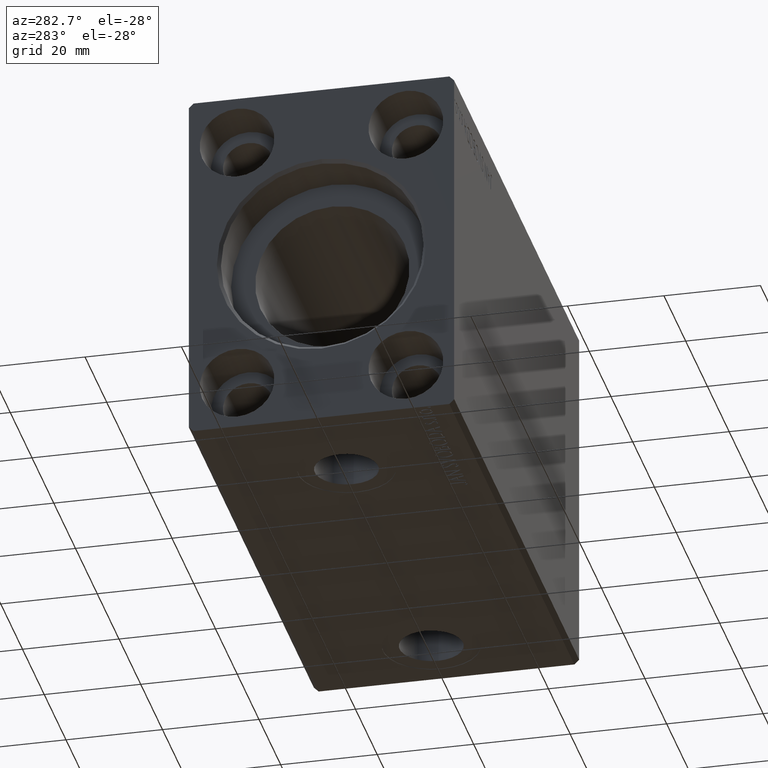
[diagram: clean part render]
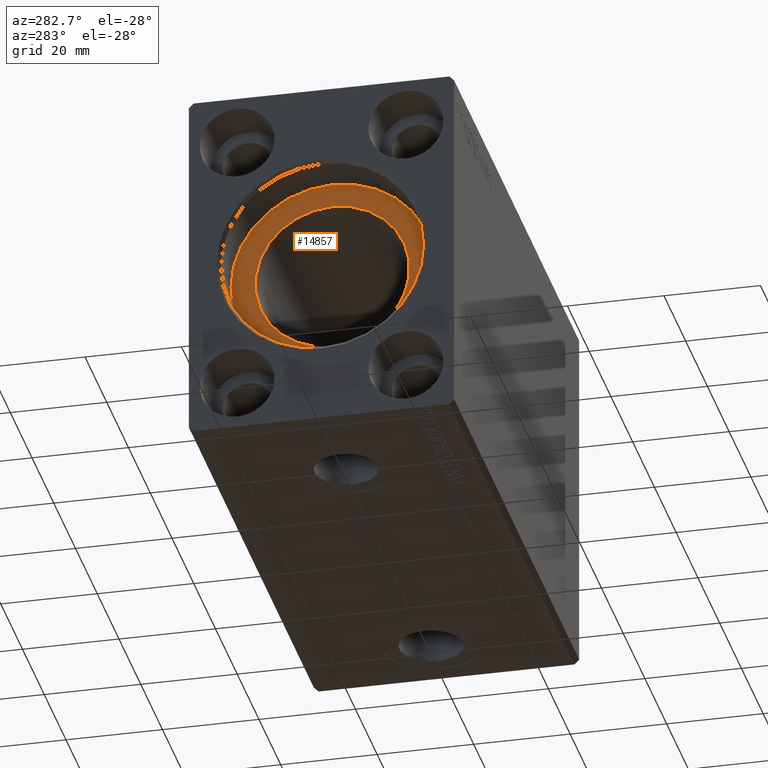
[diagram: same view with one face highlighted and labeled with its STEP entity id]
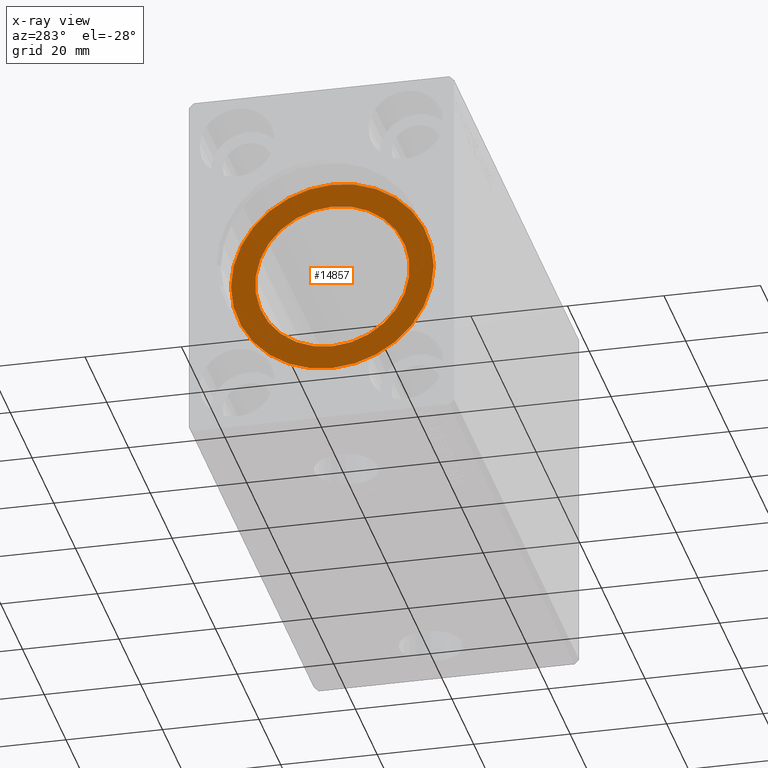
[diagram: x-ray of the same camera — body ghosted, the highlighted face saturated]
A machine part, auxiliary view. The second image highlights one B-rep face of the part: STEP entity #14857.
The next image is the same camera in x-ray: the body ghosted, the highlighted face saturated — about 0% of this face is hidden behind the body in this view.
In plain terms, the highlighted planar face has unit normal (-1, 0, 0).
Its self-contained STEP definition (entity closure, byte-faithful):
#2476 = CARTESIAN_POINT ( 'NONE',  ( 9.999999999999994671, 0.000000000000000000, 0.000000000000000000 ) ) ;
#3329 = DIRECTION ( 'NONE',  ( -1.000000000000000000, 0.000000000000000000, 0.000000000000000000 ) ) ;
#3421 = CARTESIAN_POINT ( 'NONE',  ( 9.999999999999994671, 1.959434878635765131E-15, -16.00000000000000000 ) ) ;
#5676 = VERTEX_POINT ( 'NONE', #39258 ) ;
#6351 = DIRECTION ( 'NONE',  ( -1.000000000000000000, 0.000000000000000000, 0.000000000000000000 ) ) ;
#6489 = VERTEX_POINT ( 'NONE', #27042 ) ;
#7194 = AXIS2_PLACEMENT_3D ( 'NONE', #39531, #12834, #32445 ) ;
#8760 = EDGE_CURVE ( 'NONE', #11483, #32290, #37356, .T. ) ;
#11483 = VERTEX_POINT ( 'NONE', #3421 ) ;
#12834 = DIRECTION ( 'NONE',  ( -1.000000000000000000, 0.000000000000000000, 0.000000000000000000 ) ) ;
#13344 = AXIS2_PLACEMENT_3D ( 'NONE', #34014, #27131, #16778 ) ;
#14857 = ADVANCED_FACE ( 'NONE', ( #18869, #29206 ), #38456, .T. ) ;
#16030 = AXIS2_PLACEMENT_3D ( 'NONE', #2476, #6351, #28781 ) ;
#16778 = DIRECTION ( 'NONE',  ( 0.000000000000000000, 0.000000000000000000, 1.000000000000000000 ) ) ;
#18869 = FACE_BOUND ( 'NONE', #34520, .T. ) ;
#19074 = DIRECTION ( 'NONE',  ( 0.000000000000000000, 0.000000000000000000, 1.000000000000000000 ) ) ;
#19497 = ORIENTED_EDGE ( 'NONE', *, *, #20966, .T. ) ;
#20265 = CIRCLE ( 'NONE', #7194, 16.00000000000000000 ) ;
#20966 = EDGE_CURVE ( 'NONE', #6489, #5676, #37220, .T. ) ;
#21894 = AXIS2_PLACEMENT_3D ( 'NONE', #42333, #3329, #19074 ) ;
#25349 = EDGE_LOOP ( 'NONE', ( #19497, #42012 ) ) ;
#27042 = CARTESIAN_POINT ( 'NONE',  ( 10.00000000000000000, 0.000000000000000000, 21.00000000000000000 ) ) ;
#27131 = DIRECTION ( 'NONE',  ( -1.000000000000000000, 0.000000000000000000, 0.000000000000000000 ) ) ;
#28781 = DIRECTION ( 'NONE',  ( 0.000000000000000000, 0.000000000000000000, 1.000000000000000000 ) ) ;
#29157 = CIRCLE ( 'NONE', #13344, 21.00000000000000000 ) ;
#29206 = FACE_OUTER_BOUND ( 'NONE', #25349, .T. ) ;
#30049 = DIRECTION ( 'NONE',  ( 0.000000000000000000, 0.000000000000000000, 1.000000000000000000 ) ) ;
#31853 = ORIENTED_EDGE ( 'NONE', *, *, #41980, .F. ) ;
#32290 = VERTEX_POINT ( 'NONE', #42085 ) ;
#32445 = DIRECTION ( 'NONE',  ( 0.000000000000000000, 0.000000000000000000, 1.000000000000000000 ) ) ;
#32856 = DIRECTION ( 'NONE',  ( -1.000000000000000000, 0.000000000000000000, 0.000000000000000000 ) ) ;
#33250 = ORIENTED_EDGE ( 'NONE', *, *, #8760, .F. ) ;
#34014 = CARTESIAN_POINT ( 'NONE',  ( 10.00000000000000000, 0.000000000000000000, 0.000000000000000000 ) ) ;
#34520 = EDGE_LOOP ( 'NONE', ( #31853, #33250 ) ) ;
#35844 = EDGE_CURVE ( 'NONE', #5676, #6489, #29157, .T. ) ;
#37220 = CIRCLE ( 'NONE', #41996, 21.00000000000000000 ) ;
#37356 = CIRCLE ( 'NONE', #16030, 16.00000000000000000 ) ;
#38456 = PLANE ( 'NONE',  #21894 ) ;
#39258 = CARTESIAN_POINT ( 'NONE',  ( 10.00000000000000000, 2.571758278209441661E-15, -21.00000000000000000 ) ) ;
#39515 = CARTESIAN_POINT ( 'NONE',  ( 10.00000000000000000, 0.000000000000000000, 0.000000000000000000 ) ) ;
#39531 = CARTESIAN_POINT ( 'NONE',  ( 9.999999999999994671, 0.000000000000000000, 0.000000000000000000 ) ) ;
#41980 = EDGE_CURVE ( 'NONE', #32290, #11483, #20265, .T. ) ;
#41996 = AXIS2_PLACEMENT_3D ( 'NONE', #39515, #32856, #30049 ) ;
#42012 = ORIENTED_EDGE ( 'NONE', *, *, #35844, .T. ) ;
#42085 = CARTESIAN_POINT ( 'NONE',  ( 9.999999999999994671, 0.000000000000000000, 16.00000000000000000 ) ) ;
#42333 = CARTESIAN_POINT ( 'NONE',  ( 10.00000000000000000, 0.000000000000000000, 0.000000000000000000 ) ) ;